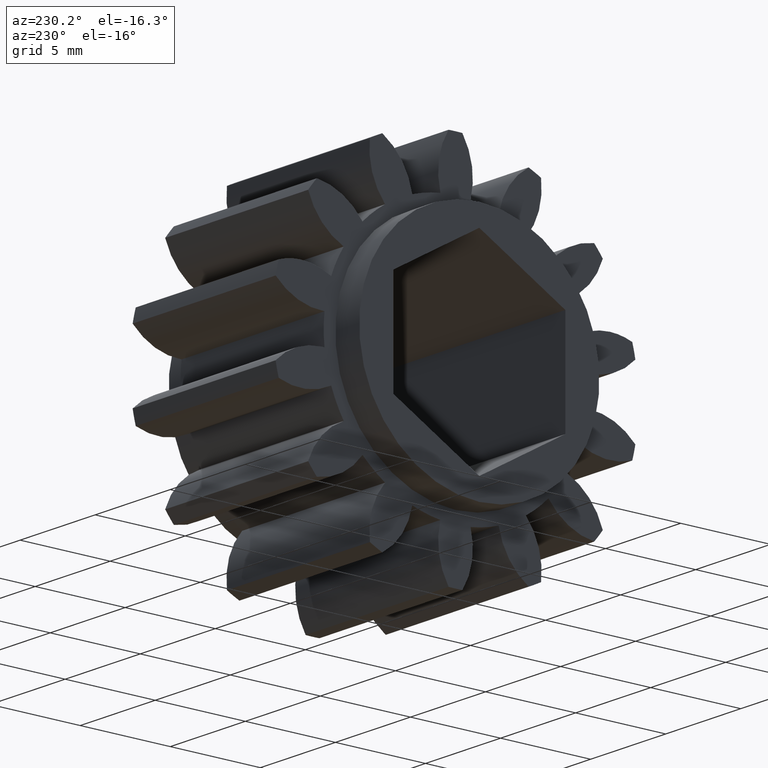
[diagram: clean part render]
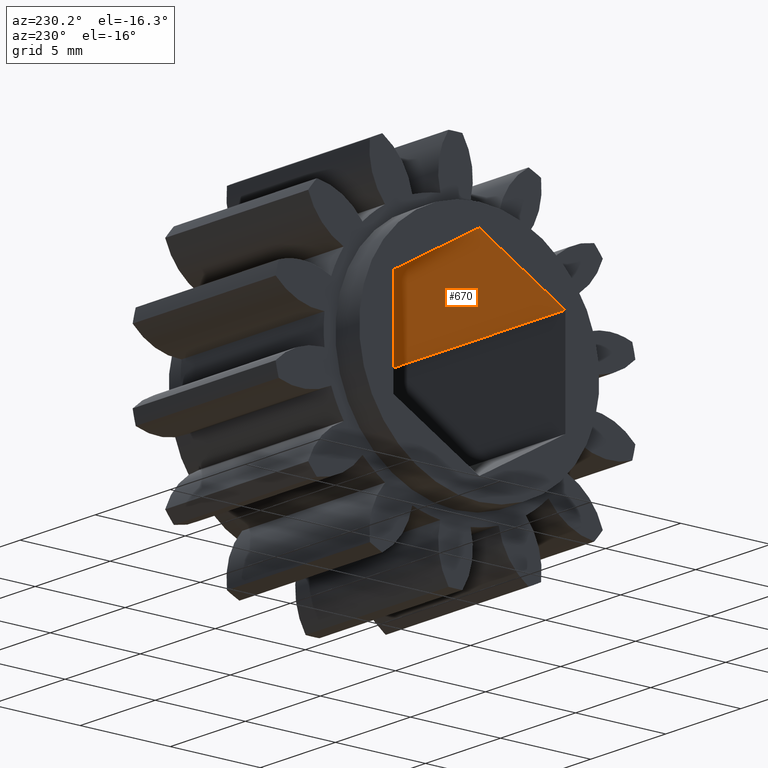
[diagram: same view with one face highlighted and labeled with its STEP entity id]
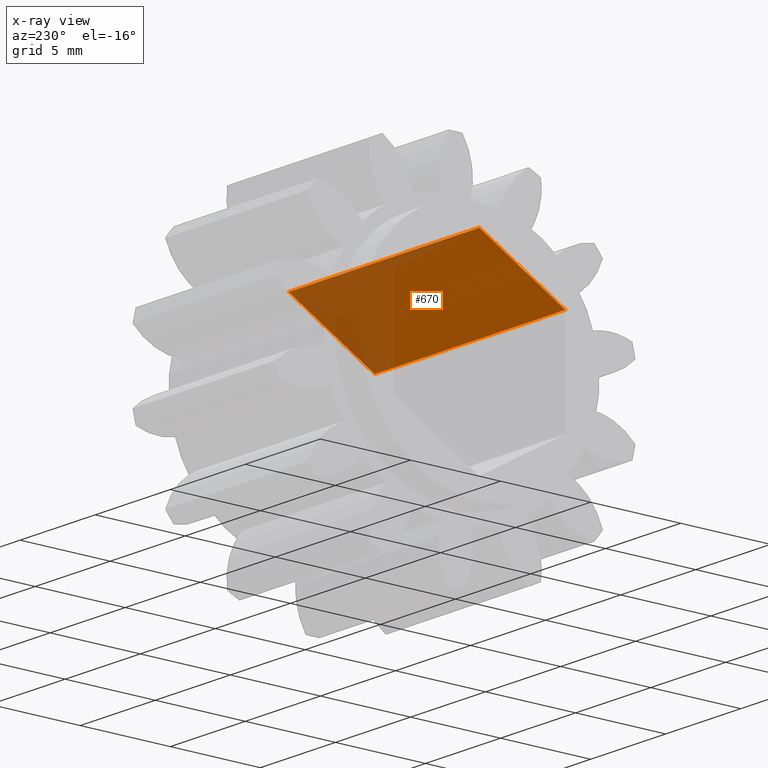
[diagram: x-ray of the same camera — body ghosted, the highlighted face saturated]
A machine part, auxiliary view. The second image highlights one B-rep face of the part: STEP entity #670.
The next image is the same camera in x-ray: the body ghosted, the highlighted face saturated — about 35% of this face is hidden behind the body in this view.
In plain terms, the highlighted planar face has unit normal (0, -0.5, 0.866).
Its self-contained STEP definition (entity closure, byte-faithful):
#13 = VERTEX_POINT ( 'NONE', #2136 ) ;
#19 = CARTESIAN_POINT ( 'NONE',  ( -0.06250000000000001400, 1.367217236287623700E-016, 0.2170837012152993000 ) ) ;
#30 = EDGE_LOOP ( 'NONE', ( #2414, #1752, #2352, #1644 ) ) ;
#445 = CARTESIAN_POINT ( 'NONE',  ( -0.06250000000000001400, -0.1879999999999999700, 0.1085418506076495400 ) ) ;
#451 = DIRECTION ( 'NONE',  ( 1.000000000000000000, -0.0000000000000000000, -0.0000000000000000000 ) ) ;
#565 = VERTEX_POINT ( 'NONE', #2508 ) ;
#661 = VERTEX_POINT ( 'NONE', #2006 ) ;
#670 = ADVANCED_FACE ( 'NONE', ( #1368 ), #1970, .F. ) ;
#707 = DIRECTION ( 'NONE',  ( 1.000000000000000000, -0.0000000000000000000, -0.0000000000000000000 ) ) ;
#869 = EDGE_CURVE ( 'NONE', #1215, #13, #2569, .T. ) ;
#933 = CARTESIAN_POINT ( 'NONE',  ( -0.06250000000000001400, 1.367217236287623700E-016, 0.2170837012152993000 ) ) ;
#1109 = AXIS2_PLACEMENT_3D ( 'NONE', #1978, #1957, #1944 ) ;
#1215 = VERTEX_POINT ( 'NONE', #933 ) ;
#1368 = FACE_OUTER_BOUND ( 'NONE', #30, .T. ) ;
#1502 = EDGE_CURVE ( 'NONE', #13, #661, #2221, .T. ) ;
#1608 = DIRECTION ( 'NONE',  ( 0.0000000000000000000, -0.8660254037844386000, -0.5000000000000001100 ) ) ;
#1634 = VECTOR ( 'NONE', #707, 39.37007874015748100 ) ;
#1644 = ORIENTED_EDGE ( 'NONE', *, *, #2290, .T. ) ;
#1666 = LINE ( 'NONE', #19, #1634 ) ;
#1703 = DIRECTION ( 'NONE',  ( 0.0000000000000000000, -0.8660254037844386000, -0.5000000000000001100 ) ) ;
#1714 = CARTESIAN_POINT ( 'NONE',  ( 0.4375000000000000600, 1.367217236287623700E-016, 0.2170837012152993000 ) ) ;
#1752 = ORIENTED_EDGE ( 'NONE', *, *, #1502, .F. ) ;
#1798 = CARTESIAN_POINT ( 'NONE',  ( -0.06250000000000001400, 1.367217236287623700E-016, 0.2170837012152993000 ) ) ;
#1944 = DIRECTION ( 'NONE',  ( 0.0000000000000000000, -0.8660254037844384900, -0.5000000000000001100 ) ) ;
#1957 = DIRECTION ( 'NONE',  ( 0.0000000000000000000, -0.5000000000000002200, 0.8660254037844386000 ) ) ;
#1970 = PLANE ( 'NONE',  #1109 ) ;
#1978 = CARTESIAN_POINT ( 'NONE',  ( -0.06250000000000001400, 1.367217236287623700E-016, 0.2170837012152993000 ) ) ;
#1995 = VECTOR ( 'NONE', #1608, 39.37007874015748900 ) ;
#2006 = CARTESIAN_POINT ( 'NONE',  ( 0.4375000000000000600, -0.1879999999999999700, 0.1085418506076495400 ) ) ;
#2062 = LINE ( 'NONE', #1714, #1995 ) ;
#2129 = EDGE_CURVE ( 'NONE', #565, #661, #2062, .T. ) ;
#2136 = CARTESIAN_POINT ( 'NONE',  ( -0.06250000000000001400, -0.1879999999999999700, 0.1085418506076495400 ) ) ;
#2200 = VECTOR ( 'NONE', #451, 39.37007874015748100 ) ;
#2221 = LINE ( 'NONE', #445, #2200 ) ;
#2290 = EDGE_CURVE ( 'NONE', #1215, #565, #1666, .T. ) ;
#2352 = ORIENTED_EDGE ( 'NONE', *, *, #869, .F. ) ;
#2414 = ORIENTED_EDGE ( 'NONE', *, *, #2129, .T. ) ;
#2508 = CARTESIAN_POINT ( 'NONE',  ( 0.4375000000000000600, 1.367217236287623700E-016, 0.2170837012152993000 ) ) ;
#2565 = VECTOR ( 'NONE', #1703, 39.37007874015748900 ) ;
#2569 = LINE ( 'NONE', #1798, #2565 ) ;